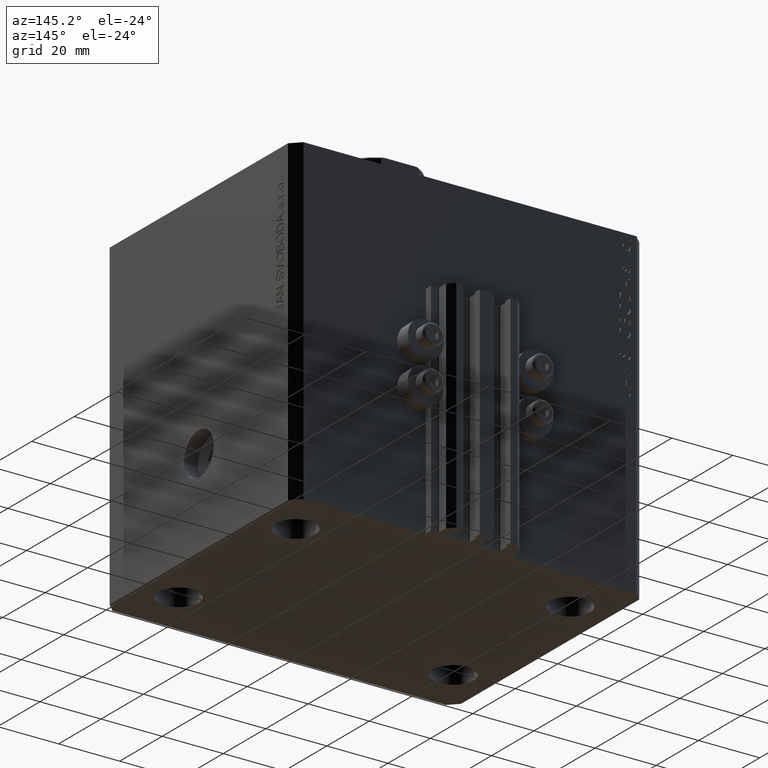
[diagram: clean part render]
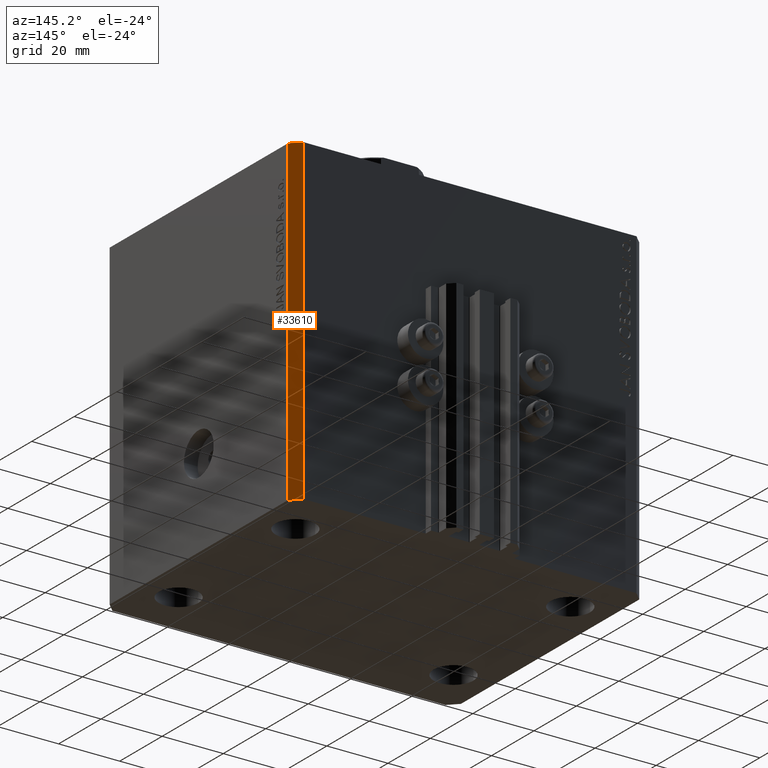
[diagram: same view with one face highlighted and labeled with its STEP entity id]
A machine part, auxiliary view. The second image highlights one B-rep face of the part: STEP entity #33610.
In plain terms, the highlighted planar face has unit normal (0.7071, 0.7071, 0).
Its self-contained STEP definition (entity closure, byte-faithful):
#106 = AXIS2_PLACEMENT_3D ( 'NONE', #42860, #10882, #11120 ) ;
#132 = PLANE ( 'NONE',  #106 ) ;
#3069 = CARTESIAN_POINT ( 'NONE',  ( 57.50000000000055422, 41.99999999999997868, -105.0000000000000000 ) ) ;
#5475 = VECTOR ( 'NONE', #20202, 1000.000000000000000 ) ;
#5989 = VERTEX_POINT ( 'NONE', #27950 ) ;
#8402 = LINE ( 'NONE', #19166, #16131 ) ;
#8512 = ORIENTED_EDGE ( 'NONE', *, *, #15799, .F. ) ;
#9902 = CARTESIAN_POINT ( 'NONE',  ( 57.50000000000055422, 41.99999999999997868, 0.000000000000000000 ) ) ;
#10882 = DIRECTION ( 'NONE',  ( 0.7071067811865582309, 0.7071067811865369146, -0.000000000000000000 ) ) ;
#11120 = DIRECTION ( 'NONE',  ( -0.7071067811865369146, 0.7071067811865582309, 0.000000000000000000 ) ) ;
#11609 = LINE ( 'NONE', #19006, #43639 ) ;
#11775 = DIRECTION ( 'NONE',  ( -0.7071067811865369146, 0.7071067811865581199, 0.000000000000000000 ) ) ;
#15799 = EDGE_CURVE ( 'NONE', #19768, #5989, #8402, .T. ) ;
#15834 = VECTOR ( 'NONE', #34165, 1000.000000000000000 ) ;
#16131 = VECTOR ( 'NONE', #11775, 1000.000000000000000 ) ;
#16850 = ORIENTED_EDGE ( 'NONE', *, *, #23015, .T. ) ;
#17209 = VERTEX_POINT ( 'NONE', #3069 ) ;
#17336 = LINE ( 'NONE', #45743, #5475 ) ;
#17626 = EDGE_CURVE ( 'NONE', #17209, #19768, #11609, .T. ) ;
#19006 = CARTESIAN_POINT ( 'NONE',  ( 57.50000000000055422, 41.99999999999997868, -105.0000000000000000 ) ) ;
#19166 = CARTESIAN_POINT ( 'NONE',  ( 57.50000000000055422, 41.99999999999997868, 0.000000000000000000 ) ) ;
#19424 = ORIENTED_EDGE ( 'NONE', *, *, #34174, .T. ) ;
#19768 = VERTEX_POINT ( 'NONE', #9902 ) ;
#20202 = DIRECTION ( 'NONE',  ( -0.7071067811865369146, 0.7071067811865581199, 0.000000000000000000 ) ) ;
#23015 = EDGE_CURVE ( 'NONE', #45076, #5989, #41567, .T. ) ;
#24251 = ORIENTED_EDGE ( 'NONE', *, *, #17626, .F. ) ;
#26167 = DIRECTION ( 'NONE',  ( 0.000000000000000000, 0.000000000000000000, 1.000000000000000000 ) ) ;
#27950 = CARTESIAN_POINT ( 'NONE',  ( 54.50000000000059686, 45.00000000000002842, 0.000000000000000000 ) ) ;
#33610 = ADVANCED_FACE ( 'NONE', ( #36630 ), #132, .T. ) ;
#34165 = DIRECTION ( 'NONE',  ( 0.000000000000000000, 0.000000000000000000, 1.000000000000000000 ) ) ;
#34174 = EDGE_CURVE ( 'NONE', #17209, #45076, #17336, .T. ) ;
#36520 = CARTESIAN_POINT ( 'NONE',  ( 54.50000000000059686, 45.00000000000002842, -105.0000000000000000 ) ) ;
#36630 = FACE_OUTER_BOUND ( 'NONE', #40980, .T. ) ;
#40980 = EDGE_LOOP ( 'NONE', ( #8512, #24251, #19424, #16850 ) ) ;
#41567 = LINE ( 'NONE', #44474, #15834 ) ;
#42860 = CARTESIAN_POINT ( 'NONE',  ( 57.50000000000055422, 41.99999999999997868, -105.0000000000000000 ) ) ;
#43639 = VECTOR ( 'NONE', #26167, 1000.000000000000000 ) ;
#44474 = CARTESIAN_POINT ( 'NONE',  ( 54.50000000000059686, 45.00000000000002842, -105.0000000000000000 ) ) ;
#45076 = VERTEX_POINT ( 'NONE', #36520 ) ;
#45743 = CARTESIAN_POINT ( 'NONE',  ( 57.50000000000055422, 41.99999999999997868, -105.0000000000000000 ) ) ;